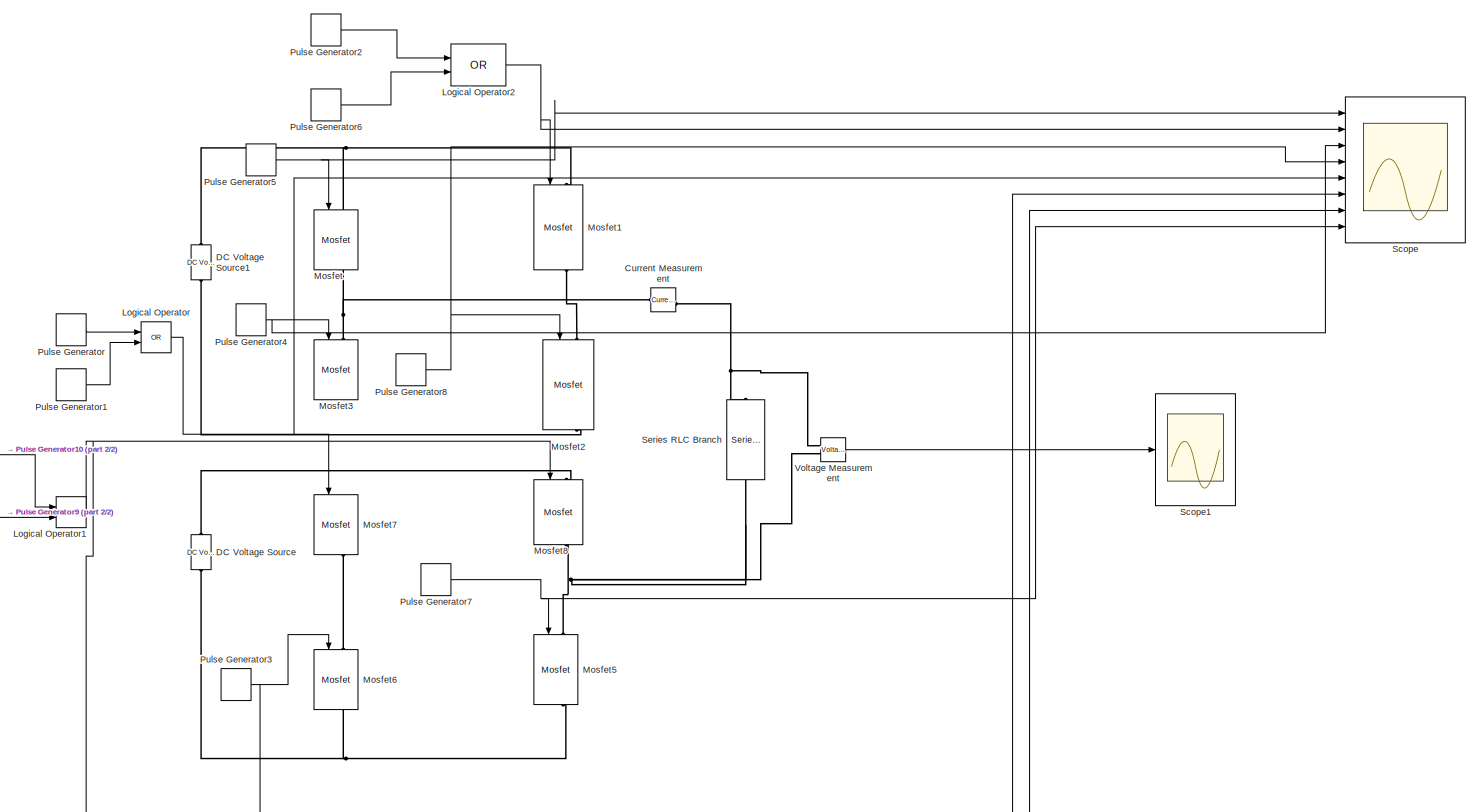
[diagram: root canvas - part 1/2, most of the canvas]
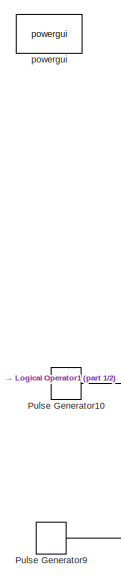
[diagram: root canvas - part 2/2, middle left region]
MODEL slx_3b51a5c443e9
KIND model
CONFIG AbsTol = auto
CONFIG FixedStep = auto
CONFIG MaxStep = auto
CONFIG MinStep = auto
CONFIG RelTol = 1e-3
CONFIG SampleTimeConstraint = Unconstrained
CONFIG Solver = VariableStepAuto
CONFIG SolverMode = Auto
CONFIG SolverName = VariableStepAuto
CONFIG StartTime = 0.0
CONFIG StopTime = 10.0
BLOCK [Reference] Current Measurement  REF=powerlib/Measurements/Current Measurement
  Ports = [0, 1, 0, 0, 0, 1, 1]
  SourceBlock = powerlib/Measurements/Current Measurement
  SourceType = Current Measurement
  UserDataPersistent = on
BLOCK [Reference] DC Voltage Source  REF=powerlib/Electrical
Sources/DC Voltage Source
  Ports = [0, 0, 0, 0, 0, 1, 1]
  SourceBlock = powerlib/Electrical\nSources/DC Voltage Source
  SourceType = DC Voltage Source
BLOCK [Reference] DC Voltage Source1  REF=powerlib/Electrical
Sources/DC Voltage Source
  Ports = [0, 0, 0, 0, 0, 1, 1]
  SourceBlock = powerlib/Electrical\nSources/DC Voltage Source
  SourceType = DC Voltage Source
BLOCK [Logic] Logical Operator
  AllPortsSameDT = off
  Operator = OR
  OutDataTypeStr = boolean
  Ports = [2, 1]
BLOCK [Logic] Logical Operator1
  AllPortsSameDT = off
  Operator = OR
  OutDataTypeStr = boolean
  Ports = [2, 1]
BLOCK [Logic] Logical Operator2
  AllPortsSameDT = off
  Operator = OR
  OutDataTypeStr = boolean
  Ports = [2, 1]
BLOCK [Reference] Mosfet  REF=powerlib/Power
Electronics/Mosfet
  Ports = [1, 1, 0, 0, 0, 1, 1]
  SourceBlock = powerlib/Power\nElectronics/Mosfet
  SourceType = Mosfet
BLOCK [Reference] Mosfet1  REF=powerlib/Power
Electronics/Mosfet
  Ports = [1, 1, 0, 0, 0, 1, 1]
  SourceBlock = powerlib/Power\nElectronics/Mosfet
  SourceType = Mosfet
BLOCK [Reference] Mosfet2  REF=powerlib/Power
Electronics/Mosfet
  Ports = [1, 1, 0, 0, 0, 1, 1]
  SourceBlock = powerlib/Power\nElectronics/Mosfet
  SourceType = Mosfet
BLOCK [Reference] Mosfet3  REF=powerlib/Power
Electronics/Mosfet
  Ports = [1, 1, 0, 0, 0, 1, 1]
  SourceBlock = powerlib/Power\nElectronics/Mosfet
  SourceType = Mosfet
BLOCK [Reference] Mosfet5  REF=powerlib/Power
Electronics/Mosfet
  Ports = [1, 1, 0, 0, 0, 1, 1]
  SourceBlock = powerlib/Power\nElectronics/Mosfet
  SourceType = Mosfet
BLOCK [Reference] Mosfet6  REF=powerlib/Power
Electronics/Mosfet
  Ports = [1, 1, 0, 0, 0, 1, 1]
  SourceBlock = powerlib/Power\nElectronics/Mosfet
  SourceType = Mosfet
BLOCK [Reference] Mosfet7  REF=powerlib/Power
Electronics/Mosfet
  Ports = [1, 1, 0, 0, 0, 1, 1]
  SourceBlock = powerlib/Power\nElectronics/Mosfet
  SourceType = Mosfet
BLOCK [Reference] Mosfet8  REF=powerlib/Power
Electronics/Mosfet
  Ports = [1, 1, 0, 0, 0, 1, 1]
  SourceBlock = powerlib/Power\nElectronics/Mosfet
  SourceType = Mosfet
BLOCK [DiscretePulseGenerator] Pulse Generator
  Period = 0.02
  PhaseDelay = (0.02/8)*0
  Ports = [0, 1]
  PulseType = Time based
  PulseWidth = (6/8)*100
BLOCK [DiscretePulseGenerator] Pulse Generator1
  Period = 0.02
  PhaseDelay = (0.2/8)*7
  Ports = [0, 1]
  PulseType = Time based
  PulseWidth = (1/8)*100
BLOCK [DiscretePulseGenerator] Pulse Generator10 
  Period = 0.02
  PhaseDelay = (0.02/8)*0
  Ports = [0, 1]
  PulseType = Time based
  PulseWidth = (2/8)*100
BLOCK [DiscretePulseGenerator] Pulse Generator2
  Period = 0.02
  PhaseDelay = (0.02/8)*0
  Ports = [0, 1]
  PulseType = Time based
  PulseWidth = (1/8)*100
BLOCK [DiscretePulseGenerator] Pulse Generator3
  Period = 0.02
  PhaseDelay = (0.02/8)*6
  Ports = [0, 1]
  PulseType = Time based
  PulseWidth = (1/8)*100
BLOCK [DiscretePulseGenerator] Pulse Generator4
  Period = 0.02
  PhaseDelay = (0.02/8)*5
  Ports = [0, 1]
  PulseType = Time based
  PulseWidth = (3/8)*100
BLOCK [DiscretePulseGenerator] Pulse Generator5
  Period = 0.02
  PhaseDelay = (0.02/8)*0
  Ports = [0, 1]
  PulseType = Time based
  PulseWidth = (5/8)*100
BLOCK [DiscretePulseGenerator] Pulse Generator6
  Period = 0.02
  PhaseDelay = (0.2/8)*4
  Ports = [0, 1]
  PulseType = Time based
  PulseWidth = (4/8)*100
BLOCK [DiscretePulseGenerator] Pulse Generator7
  Period = 0.02
  PhaseDelay = (0.02/8)*0
  Ports = [0, 1]
  PulseType = Time based
  PulseWidth = (2/8)*100
BLOCK [DiscretePulseGenerator] Pulse Generator8
  Period = 0.02
  PhaseDelay = (0.02/8)*1
  Ports = [0, 1]
  PulseType = Time based
  PulseWidth = (3/8)*100
BLOCK [DiscretePulseGenerator] Pulse Generator9
  Period = 0.02
  PhaseDelay = (0.2/8)*3
  Ports = [0, 1]
  PulseType = Time based
  PulseWidth = (5/8)*100
BLOCK [Scope] Scope
  NumInputPorts = 8
  Ports = [8]
  ScopeSpecificationString = Simulink.scopes.TimeScopeBlockCfg('CurrentConfiguration', extmgr.ConfigurationSet(extmgr.Configuration('Core','General UI',true,'FigureColor',[1 1 1]),extmgr.Configuration('Core','Source UI',true),extmgr.Configuration('Sources','WiredSimulink',true,'DataLoggingLimitDataPoints',true,'DataLoggingSaveFormat','Array','DataLoggingDecimation','1','DataLoggingDecimateData',true),extmgr.Configuration('Vis...<+8091ch>
BLOCK [Scope] Scope1
  Ports = [1]
  ScopeSpecificationString = Simulink.scopes.TimeScopeBlockCfg('CurrentConfiguration', extmgr.ConfigurationSet(extmgr.Configuration('Core','General UI',true),extmgr.Configuration('Core','Source UI',true),extmgr.Configuration('Sources','WiredSimulink',true,'DataLoggingVariableName','ScopeData1','DataLoggingLimitDataPoints',true,'DataLoggingSaveFormat','Array','DataLoggingDecimation','1','DataLoggingDecimateData',true),extmgr.C...<+1614ch>
BLOCK [Reference] Series RLC Branch  REF=powerlib/Elements/Series RLC Branch
  Ports = [0, 0, 0, 0, 0, 1, 1]
  SourceBlock = powerlib/Elements/Series RLC Branch
  SourceType = Series RLC Branch
BLOCK [Reference] Voltage Measurement  REF=powerlib/Measurements/Voltage Measurement
  Ports = [0, 1, 0, 0, 0, 2]
  SourceBlock = powerlib/Measurements/Voltage Measurement
  SourceType = Voltage Measurement
  UserDataPersistent = on
BLOCK [Reference] powergui  REF=powerlib/powergui
  Ports = []
  Priority = 1
  SourceBlock = powerlib/powergui
  SourceType = PSB option menu block
  UserDataPersistent = on
NET Logical Operator1:1 -> Mosfet8:1, Scope:6
NET Logical Operator2:1 -> Mosfet1:1, Scope:2
NET Logical Operator:1 -> Mosfet7:1, Scope:5
LINE Pulse Generator10 :1 -> Logical Operator1:1
LINE Pulse Generator1:1 -> Logical Operator:2
LINE Pulse Generator2:1 -> Logical Operator2:1
NET Pulse Generator3:1 -> Mosfet6:1, Scope:7
NET Pulse Generator4:1 -> Mosfet3:1, Scope:3
NET Pulse Generator5:1 -> Mosfet:1, Scope:1
LINE Pulse Generator6:1 -> Logical Operator2:2
NET Pulse Generator7:1 -> Mosfet5:1, Scope:8
NET Pulse Generator8:1 -> Mosfet2:1, Scope:4
LINE Pulse Generator9:1 -> Logical Operator1:2
LINE Pulse Generator:1 -> Logical Operator:1
LINE Voltage Measurement:1 -> Scope1:1
PNET net1: Current Measurement:LConn1 -- Mosfet3:LConn1 -- Mosfet:RConn1
PNET net2: Current Measurement:RConn1 -- Series RLC Branch:LConn1 -- Voltage Measurement:LConn1
PLINE DC Voltage Source1:LConn1 -- Mosfet2:RConn1
PNET net3: DC Voltage Source1:RConn1 -- Mosfet1:LConn1 -- Mosfet:LConn1
PNET net4: DC Voltage Source:LConn1 -- Mosfet5:RConn1 -- Mosfet6:RConn1
PLINE DC Voltage Source:RConn1 -- Mosfet8:LConn1
PLINE Mosfet1:RConn1 -- Mosfet2:LConn1
PNET net5: Mosfet5:LConn1 -- Mosfet8:RConn1 -- Series RLC Branch:RConn1 -- Voltage Measurement:LConn2
PLINE Mosfet6:LConn1 -- Mosfet7:RConn1
note: NET lines group one-source signal fan-out (src -> all destinations, sorted); 1:1 wires keep LINE; PNET lines group multi-terminal physical nets as a canonical sorted terminal list (undirected conserving connections); 2-terminal nets keep the pairwise PLINE form
